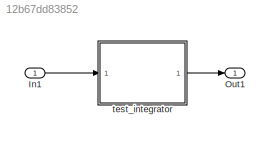
MODEL slx_12b67dd83852
KIND model
CONFIG AbsTol = auto
CONFIG EnableMultiTasking = off
CONFIG FixedStep = .01
CONFIG MaxStep = auto
CONFIG MinStep = auto
CONFIG RelTol = 1e-3
CONFIG SampleTimeConstraint = Unconstrained
CONFIG Solver = FixedStepAuto
CONFIG SolverName = FixedStepAuto
CONFIG StartTime = 0.0
CONFIG StopTime = 10.0
BLOCK [Inport] In1
  IconDisplay = Port number
  Interpolate = off
  OutDataTypeStr = double
  PortDimensions = 3
  SampleTime = [-1 0]
  SignalType = real
  VarSizeSig = No
BLOCK [Outport] Out1
  IconDisplay = Port number
  OutDataTypeStr = double
  PortDimensions = 3
  SampleTime = [-1 0]
  SignalType = real
  VarSizeSig = No
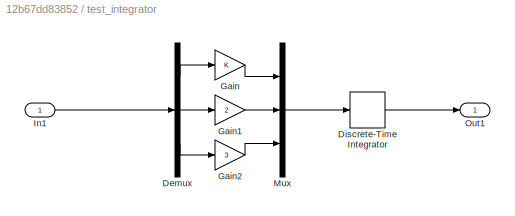
BLOCK [SubSystem] test_integrator 
  Ports = [1, 1]
  RTWSystemCode = Inline
  RequestExecContextInheritance = off
  Tag = autocodetest
  TreatAsAtomicUnit = on
  Variant = off
BLOCK [Demux] test_integrator /Demux
  DisplayOption = bar
  Outputs = 3
  Ports = [1, 3]
BLOCK [DiscreteIntegrator] test_integrator /Discrete-Time Integrator
  ICPrevOutput = DiscIntNeverNeededParam
  ICPrevScaledInput = DiscIntNeverNeededParam
  InitialConditionSetting = State (most efficient)
  Ports = [1, 1]
  SampleTime = -1
BLOCK [Gain] test_integrator /Gain
  OutDataTypeStr = Inherit: Inherit via internal rule
  ParamDataTypeStr = Inherit: Inherit via internal rule
  SaturateOnIntegerOverflow = off
BLOCK [Gain] test_integrator /Gain1
  Gain = 2
  OutDataTypeStr = Inherit: Inherit via internal rule
  ParamDataTypeStr = Inherit: Inherit via internal rule
  SaturateOnIntegerOverflow = off
BLOCK [Gain] test_integrator /Gain2
  Gain = 3
  OutDataTypeStr = Inherit: Inherit via internal rule
  ParamDataTypeStr = Inherit: Inherit via internal rule
  SaturateOnIntegerOverflow = off
BLOCK [Inport] test_integrator /In1
  IconDisplay = Port number
BLOCK [Mux] test_integrator /Mux
  DisplayOption = bar
  Inputs = 3
  Ports = [3, 1]
BLOCK [Outport] test_integrator /Out1
  IconDisplay = Port number
LINE In1:1 -> test_integrator :1
LINE test_integrator /Demux:1 -> test_integrator /Gain:1
LINE test_integrator /Demux:2 -> test_integrator /Gain1:1
LINE test_integrator /Demux:3 -> test_integrator /Gain2:1
LINE test_integrator /Discrete-Time Integrator:1 -> test_integrator /Out1:1
LINE test_integrator /Gain1:1 -> test_integrator /Mux:2
LINE test_integrator /Gain2:1 -> test_integrator /Mux:3
LINE test_integrator /Gain:1 -> test_integrator /Mux:1
LINE test_integrator /In1:1 -> test_integrator /Demux:1
LINE test_integrator /Mux:1 -> test_integrator /Discrete-Time Integrator:1
LINE test_integrator :1 -> Out1:1
